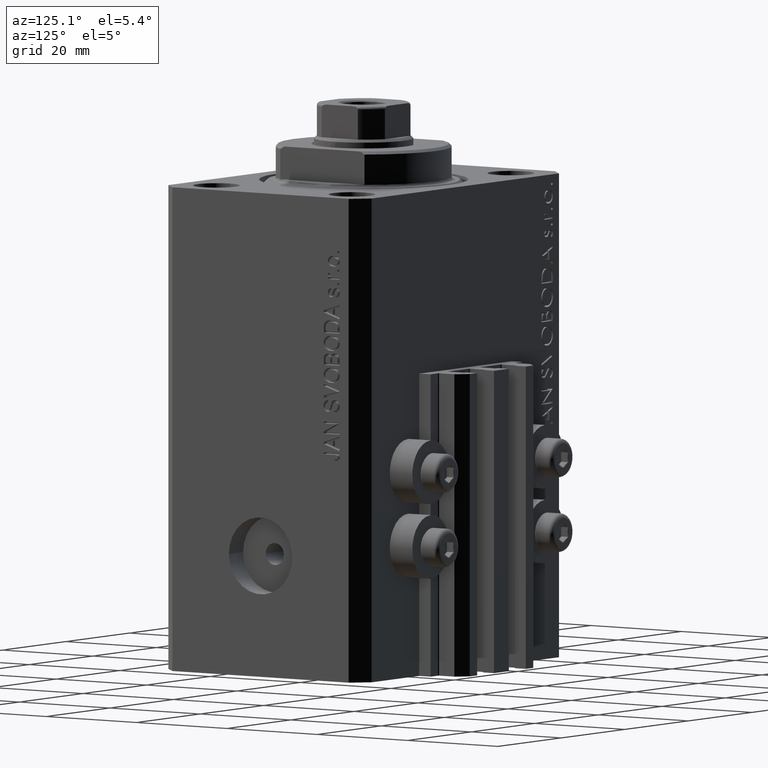
[diagram: clean part render]
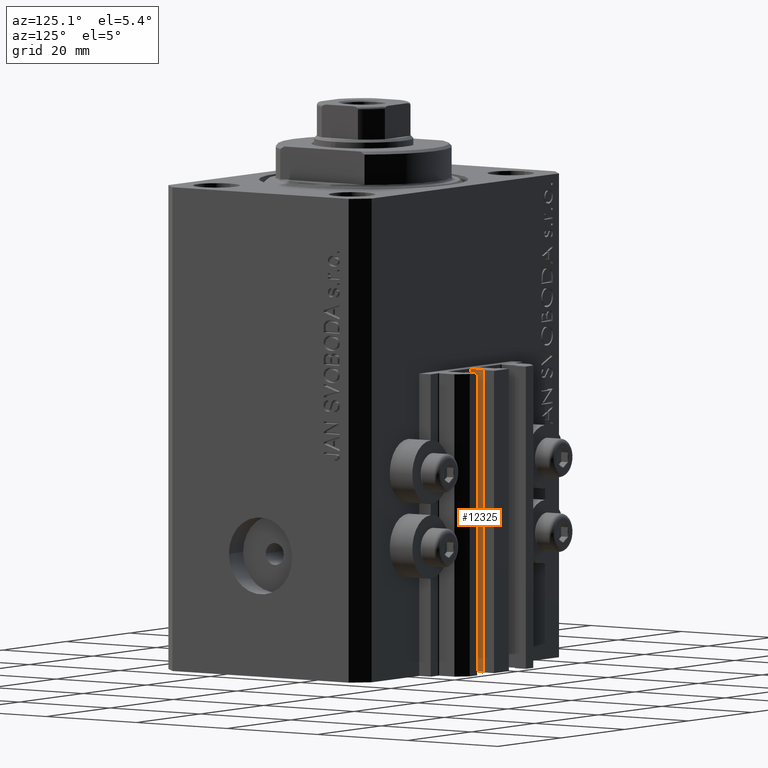
[diagram: same view with one face highlighted and labeled with its STEP entity id]
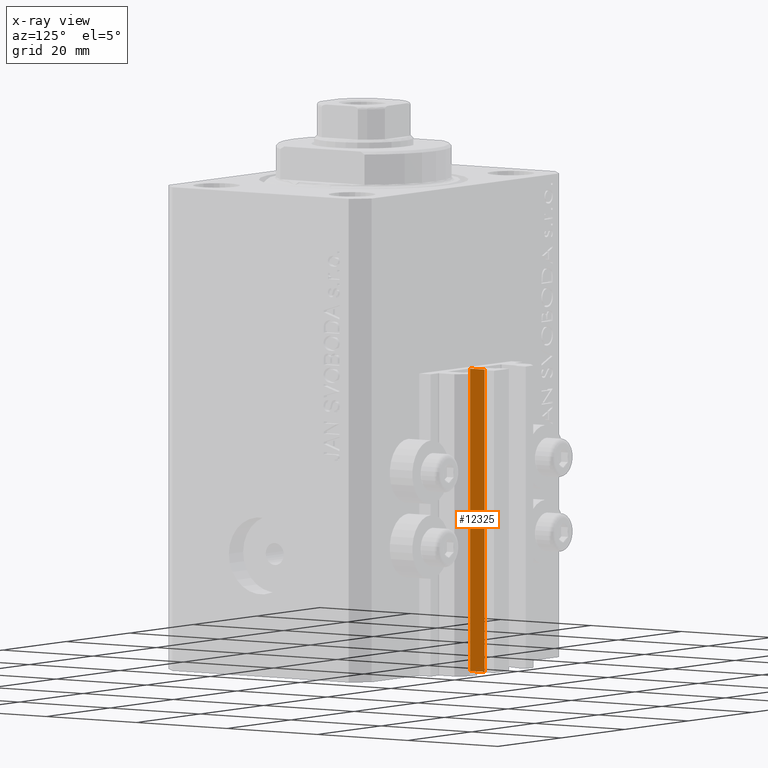
[diagram: x-ray of the same camera — body ghosted, the highlighted face saturated]
A machine part, auxiliary view. The second image highlights one B-rep face of the part: STEP entity #12325.
The next image is the same camera in x-ray: the body ghosted, the highlighted face saturated — about 0% of this face is hidden behind the body in this view.
In plain terms, the highlighted planar face has unit normal (1, 0, 0).
Its self-contained STEP definition (entity closure, byte-faithful):
#554 = LINE ( 'NONE', #7506, #46884 ) ;
#1653 = VECTOR ( 'NONE', #13262, 1000.000000000000000 ) ;
#2324 = EDGE_LOOP ( 'NONE', ( #33758, #16935, #9740, #38390 ) ) ;
#3122 = CARTESIAN_POINT ( 'NONE',  ( 1.600000000000000533, 24.69999999999949480, -33.00000000000000000 ) ) ;
#6335 = VERTEX_POINT ( 'NONE', #27071 ) ;
#6363 = VECTOR ( 'NONE', #17267, 1000.000000000000000 ) ;
#7506 = CARTESIAN_POINT ( 'NONE',  ( 1.600000000000000533, 27.89999999999950120, -88.00000000000000000 ) ) ;
#7547 = DIRECTION ( 'NONE',  ( 0.000000000000000000, 0.000000000000000000, 1.000000000000000000 ) ) ;
#7950 = PLANE ( 'NONE',  #40384 ) ;
#8250 = LINE ( 'NONE', #32732, #10223 ) ;
#9740 = ORIENTED_EDGE ( 'NONE', *, *, #28665, .T. ) ;
#10223 = VECTOR ( 'NONE', #7547, 1000.000000000000000 ) ;
#10529 = LINE ( 'NONE', #3122, #6363 ) ;
#12325 = ADVANCED_FACE ( 'NONE', ( #30254 ), #7950, .T. ) ;
#13262 = DIRECTION ( 'NONE',  ( 0.000000000000000000, 1.000000000000000000, 0.000000000000000000 ) ) ;
#14686 = DIRECTION ( 'NONE',  ( 0.000000000000000000, 0.000000000000000000, 1.000000000000000000 ) ) ;
#16148 = CARTESIAN_POINT ( 'NONE',  ( 1.600000000000000533, 24.69999999999949480, -88.00000000000000000 ) ) ;
#16935 = ORIENTED_EDGE ( 'NONE', *, *, #24687, .F. ) ;
#17267 = DIRECTION ( 'NONE',  ( 0.000000000000000000, 1.000000000000000000, 0.000000000000000000 ) ) ;
#22009 = CARTESIAN_POINT ( 'NONE',  ( 1.599999999999999645, 24.69999999999949480, -88.00000000000000000 ) ) ;
#22591 = DIRECTION ( 'NONE',  ( 0.000000000000000000, 0.000000000000000000, -1.000000000000000000 ) ) ;
#22824 = DIRECTION ( 'NONE',  ( 1.000000000000000000, 0.000000000000000000, 0.000000000000000000 ) ) ;
#23308 = CARTESIAN_POINT ( 'NONE',  ( 1.600000000000000533, 24.69999999999949480, -88.00000000000000000 ) ) ;
#24133 = EDGE_CURVE ( 'NONE', #6335, #27878, #10529, .T. ) ;
#24687 = EDGE_CURVE ( 'NONE', #39729, #6335, #8250, .T. ) ;
#27071 = CARTESIAN_POINT ( 'NONE',  ( 1.599999999999999645, 24.69999999999949480, -33.00000000000000000 ) ) ;
#27878 = VERTEX_POINT ( 'NONE', #39807 ) ;
#28665 = EDGE_CURVE ( 'NONE', #39729, #38357, #41591, .T. ) ;
#30254 = FACE_OUTER_BOUND ( 'NONE', #2324, .T. ) ;
#30301 = EDGE_CURVE ( 'NONE', #38357, #27878, #554, .T. ) ;
#32732 = CARTESIAN_POINT ( 'NONE',  ( 1.599999999999999645, 24.69999999999949480, -88.00000000000000000 ) ) ;
#33758 = ORIENTED_EDGE ( 'NONE', *, *, #24133, .F. ) ;
#38357 = VERTEX_POINT ( 'NONE', #40841 ) ;
#38390 = ORIENTED_EDGE ( 'NONE', *, *, #30301, .T. ) ;
#39729 = VERTEX_POINT ( 'NONE', #22009 ) ;
#39807 = CARTESIAN_POINT ( 'NONE',  ( 1.600000000000000533, 27.89999999999950120, -33.00000000000000000 ) ) ;
#40384 = AXIS2_PLACEMENT_3D ( 'NONE', #23308, #22824, #22591 ) ;
#40841 = CARTESIAN_POINT ( 'NONE',  ( 1.600000000000000533, 27.89999999999950120, -88.00000000000000000 ) ) ;
#41591 = LINE ( 'NONE', #16148, #1653 ) ;
#46884 = VECTOR ( 'NONE', #14686, 1000.000000000000000 ) ;